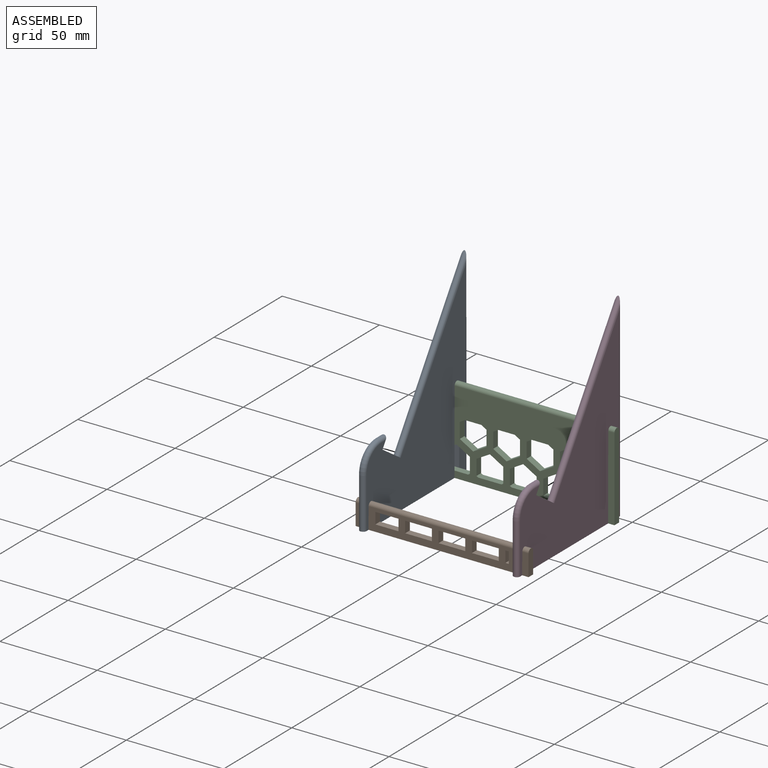
[diagram: assembled view]
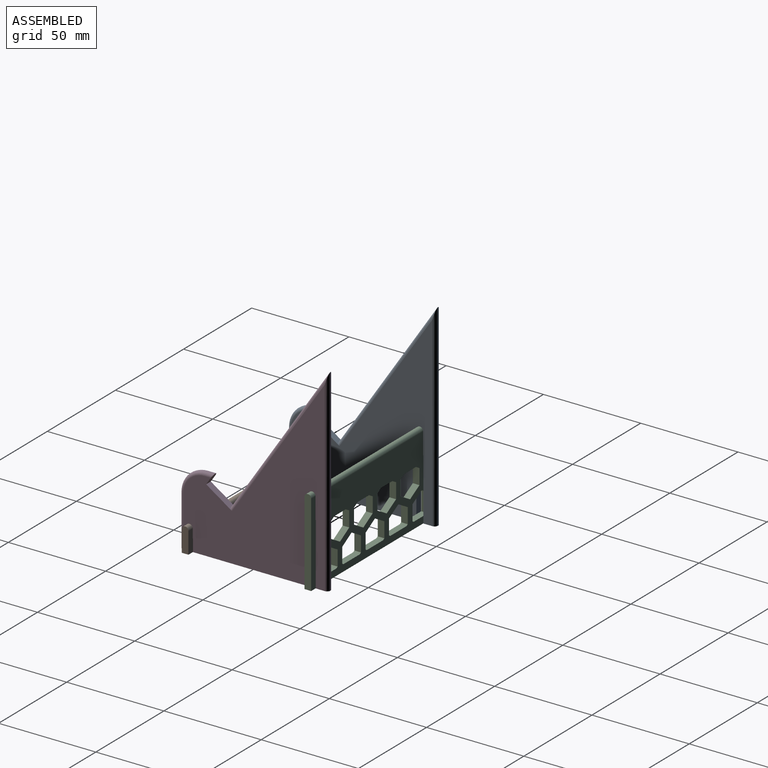
[diagram: assembled view, second angle]
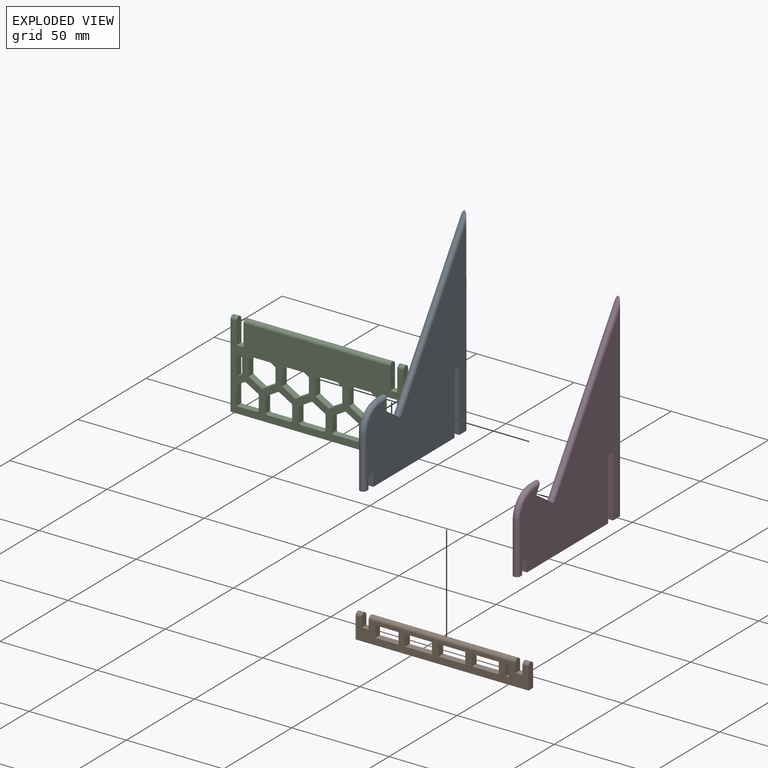
[diagram: exploded view]
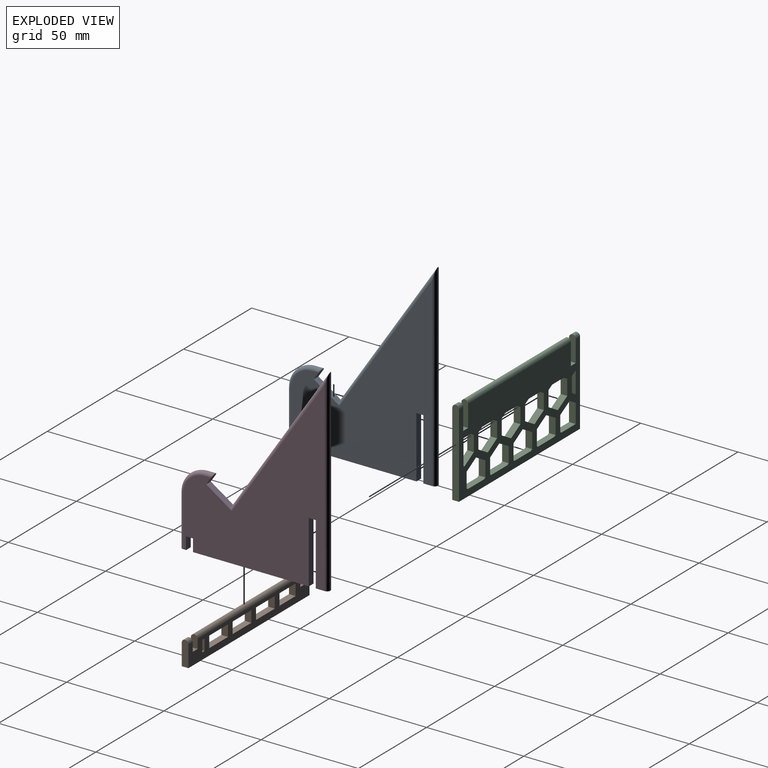
[diagram: exploded view, second angle]
ASSEMBLY  parts=4 mates=3
PART A: 19 faces, bbox 3.4x78.7x101.6 mm
  f0: plane 3.43x3.18mm, normal (0,0,-1), area 9.6mm2, adj f1,f12,f13,f16
  f1: plane 6.35x3.43mm, normal (0,1,0), area 21.8mm2, adj f0,f2,f12,f13
  f2: plane 3.56x3.43mm, normal (0,0,-1), area 12.2mm2, adj f1,f3,f12,f13
  f3: plane 6.35x3.43mm, normal (0,-1,0), area 21.8mm2, adj f2,f4,f12,f13
  f4: plane 59.56x3.43mm, normal (0,0,-1), area 204.2mm2, adj f3,f5,f12,f13
  f5: plane 31.75x3.43mm, normal (0,1,0), area 108.9mm2, adj f4,f6,f12,f13
  f6: plane 3.53x3.43mm, normal (0,0,-1), area 12.1mm2, adj f5,f7,f12,f13
  f7: cylinder r=3.32mm len=3.43mm, axis (-1,0,0), area 0.8mm2, adj f6,f8,f12,f13
  f8: plane 31.53x3.43mm, normal (0,-1,0), area 108.1mm2, adj f7,f9,f12,f13
  f9: plane 6.35x3.43mm, normal (0,0,-1), area 20.5mm2, adj f8,f12,f13,f17
  f10: plane 13.31x8.88mm, normal (0,0.55,0.83), area 50.3mm2, adj f11,f12,f13,f18
  f11: plane 5.28x3.52mm, normal (0,0.83,-0.55), area 20.3mm2, adj f10,f12,f13,f14
  f12: plane 95.94x72.77mm, normal (1,0,0), area 3531.5mm2, adj f0,f1,f2,f3,f4,f5,f6,f7
  f13: plane 95.94x72.77mm, normal (-1,0,0), area 3531.5mm2, adj f0,f1,f2,f3,f4,f5,f6,f7
  f14: cylinder r=1.71mm len=4.34mm, axis (0,-1,0), area 21.1mm2, adj f11,f12,f13,f15
  f15: torus R=10.99mm, axis (1,0,0), area 102.2mm2, adj f12,f13,f14,f16
  f16: cylinder r=1.71mm len=25.91mm, axis (0,0,-1), area 139.6mm2, adj f0,f12,f13,f15
  f17: cylinder r=1.71mm len=101.62mm, axis (0,0,-1), area 536.2mm2, adj f9,f12,f13,f18
  f18: cylinder r=1.71mm len=77.17mm, axis (0,0.55,0.83), area 482.2mm2, adj f10,f12,f13,f17
PART B: 34 faces, bbox 88.9x3.4x12.7 mm
  f0: plane 88.9x10.99mm, normal (0,-1,0), area 623.1mm2, adj f2,f3,f4,f5,f6,f7,f8,f9
  f1: plane 88.9x10.99mm, normal (0,1,0), area 623.1mm2, adj f2,f3,f4,f5,f6,f7,f8,f9
  f2: plane 6.35x3.43mm, normal (1,0,0), area 20.5mm2, adj f0,f1,f10,f13
  f3: plane 6.35x3.43mm, normal (-1,0,0), area 20.5mm2, adj f0,f1,f4,f13
  f4: plane 3.56x3.43mm, normal (0,0,1), area 12.2mm2, adj f0,f1,f3,f5
  f5: plane 6.35x3.43mm, normal (1,0,0), area 20.5mm2, adj f0,f1,f4,f12
  f6: plane 12.7x3.43mm, normal (-1,0,0), area 42.3mm2, adj f0,f1,f7,f12
  f7: plane 88.9x3.43mm, normal (0,0,-1), area 304.8mm2, adj f0,f1,f6,f8
  f8: plane 12.7x3.43mm, normal (1,0,0), area 42.3mm2, adj f0,f1,f7,f11
  f9: plane 6.35x3.43mm, normal (-1,0,0), area 20.5mm2, adj f0,f1,f10,f11
  f10: plane 3.56x3.43mm, normal (0,0,1), area 12.2mm2, adj f0,f1,f2,f9
  f11: cylinder r=1.71mm len=3.43mm, axis (1,0,0), area 17.1mm2, adj f0,f1,f8,f9
  f12: cylinder r=1.71mm len=3.43mm, axis (1,0,0), area 17.1mm2, adj f0,f1,f5,f6
  f13: cylinder r=1.71mm len=75.44mm, axis (1,0,0), area 406.3mm2, adj f0,f1,f2,f3
  f14: plane 3.43x1.74mm, normal (0,0,-1), area 6mm2, adj f0,f1,f15,f17
  f15: plane 5.84x3.43mm, normal (1,0,0), area 20mm2, adj f0,f1,f14,f16
  f16: plane 3.43x1.74mm, normal (0,0,1), area 6mm2, adj f0,f1,f15,f17
  f17: plane 5.84x3.43mm, normal (-1,0,0), area 20mm2, adj f0,f1,f14,f16
  f18: plane 13.74x3.43mm, normal (0,0,1), area 47.1mm2, adj f0,f1,f19,f21
  f19: plane 5.84x3.43mm, normal (-1,0,0), area 20mm2, adj f0,f1,f18,f20
  f20: plane 13.74x3.43mm, normal (0,0,-1), area 47.1mm2, adj f0,f1,f19,f21
  f21: plane 5.84x3.43mm, normal (1,0,0), area 20mm2, adj f0,f1,f18,f20
  f22: plane 5.84x3.43mm, normal (-1,0,0), area 20mm2, adj f0,f1,f23,f25
  f23: plane 13.74x3.43mm, normal (0,0,-1), area 47.1mm2, adj f0,f1,f22,f24
  f24: plane 5.84x3.43mm, normal (1,0,0), area 20mm2, adj f0,f1,f23,f25
  f25: plane 13.74x3.43mm, normal (0,0,1), area 47.1mm2, adj f0,f1,f22,f24
  f26: plane 5.84x3.43mm, normal (-1,0,0), area 20mm2, adj f0,f1,f27,f29
  f27: plane 13.74x3.43mm, normal (0,0,-1), area 47.1mm2, adj f0,f1,f26,f28
  f28: plane 5.84x3.43mm, normal (1,0,0), area 20mm2, adj f0,f1,f27,f29
  f29: plane 13.74x3.43mm, normal (0,0,1), area 47.1mm2, adj f0,f1,f26,f28
  f30: plane 5.84x3.43mm, normal (-1,0,0), area 20mm2, adj f0,f1,f31,f33
  f31: plane 11.9x3.43mm, normal (0,0,-1), area 40.8mm2, adj f0,f1,f30,f32
  f32: plane 5.84x3.43mm, normal (1,0,0), area 20mm2, adj f0,f1,f31,f33
  f33: plane 11.9x3.43mm, normal (0,0,1), area 40.8mm2, adj f0,f1,f30,f32
PART C: 89 faces, bbox 88.9x3.4x44.6 mm
  f0: plane 12.85x3.43mm, normal (1,0,0), area 42.8mm2, adj f6,f7,f70,f88
  f1: plane 44.45x3.43mm, normal (-1,0,0), area 151.2mm2, adj f6,f7,f71,f88
  f2: plane 44.45x3.43mm, normal (1,0,0), area 151.2mm2, adj f6,f7,f73,f87
  f3: plane 12.85x3.43mm, normal (-1,0,0), area 42.8mm2, adj f6,f7,f74,f87
  f4: plane 12.85x3.43mm, normal (1,0,0), area 42.8mm2, adj f6,f7,f74,f86
  f5: plane 12.85x3.43mm, normal (-1,0,0), area 42.8mm2, adj f6,f7,f70,f86
  f6: plane 88.9x42.88mm, normal (0,-1,0), area 2311.3mm2, adj f0,f1,f2,f3,f4,f5,f8,f9
  f7: plane 88.9x42.88mm, normal (0,1,0), area 2311.3mm2, adj f0,f1,f2,f3,f4,f5,f8,f9
  f8: plane 6.87x3.97mm, normal (0.5,0,0.87), area 27.2mm2, adj f6,f7,f9,f85
  f9: plane 7.94x3.43mm, normal (1,0,0), area 27.2mm2, adj f6,f7,f8,f10
  f10: plane 3.43x2.67mm, normal (0.5,0,-0.87), area 10.6mm2, adj f6,f7,f9,f11
  f11: plane 8.42x3.43mm, normal (0,0,-1), area 28.9mm2, adj f6,f7,f10,f12
  f12: plane 3.43x2.67mm, normal (-0.5,0,-0.87), area 10.6mm2, adj f6,f7,f11,f13
  f13: plane 7.94x3.43mm, normal (-1,0,0), area 27.2mm2, adj f6,f7,f12,f85
  f14: plane 7.94x3.43mm, normal (1,0,0), area 27.2mm2, adj f6,f7,f15,f75
  f15: plane 3.43x2.67mm, normal (0.5,0,-0.87), area 10.6mm2, adj f6,f7,f14,f16
  f16: plane 8.42x3.43mm, normal (0,0,-1), area 28.9mm2, adj f6,f7,f15,f17
  f17: plane 3.43x2.67mm, normal (-0.5,0,-0.87), area 10.6mm2, adj f6,f7,f16,f18
  f18: plane 7.94x3.43mm, normal (-1,0,0), area 27.2mm2, adj f6,f7,f17,f19
  f19: plane 6.87x3.97mm, normal (-0.5,0,0.87), area 27.2mm2, adj f6,f7,f18,f75
  f20: plane 6.87x3.97mm, normal (0.5,0,0.87), area 27.2mm2, adj f6,f7,f21,f76
  f21: plane 7.94x3.43mm, normal (1,0,0), area 27.2mm2, adj f6,f7,f20,f22
  f22: plane 3.43x2.67mm, normal (0.5,0,-0.87), area 10.6mm2, adj f6,f7,f21,f23
  f23: plane 8.42x3.43mm, normal (0,0,-1), area 28.9mm2, adj f6,f7,f22,f24
  f24: plane 3.43x2.67mm, normal (-0.5,0,-0.87), area 10.6mm2, adj f6,f7,f23,f25
  f25: plane 7.94x3.43mm, normal (-1,0,0), area 27.2mm2, adj f6,f7,f24,f76
  f26: plane 6.87x3.97mm, normal (0.5,0,0.87), area 27.2mm2, adj f6,f7,f27,f77
  f27: plane 7.94x3.43mm, normal (1,0,0), area 27.2mm2, adj f6,f7,f26,f28
  f28: plane 3.43x2.67mm, normal (0.5,0,-0.87), area 10.6mm2, adj f6,f7,f27,f29
  f29: plane 8.42x3.43mm, normal (0,0,-1), area 28.9mm2, adj f6,f7,f28,f30
  f30: plane 3.43x2.67mm, normal (-0.5,0,-0.87), area 10.6mm2, adj f6,f7,f29,f31
  f31: plane 7.94x3.43mm, normal (-1,0,0), area 27.2mm2, adj f6,f7,f30,f77
  f32: plane 7.94x3.43mm, normal (-1,0,0), area 27.2mm2, adj f6,f7,f33,f78
  f33: plane 3.43x2.81mm, normal (-0.5,0,0.87), area 11.1mm2, adj f6,f7,f32,f34
  f34: plane 11.09x3.43mm, normal (1,0,0), area 38mm2, adj f6,f7,f33,f35
  f35: plane 3.43x0.17mm, normal (0,0,-1), area 0.6mm2, adj f6,f7,f34,f78
  f36: plane 7.02x4.05mm, normal (0.5,0,0.87), area 27.8mm2, adj f6,f7,f37,f79
  f37: plane 8x3.43mm, normal (1,0,0), area 27.4mm2, adj f6,f7,f36,f38
  f38: plane 3.43x2.41mm, normal (0.5,0,-0.87), area 9.5mm2, adj f6,f7,f37,f39
  f39: plane 5.24x3.43mm, normal (0,0,-1), area 18mm2, adj f6,f7,f38,f40
  f40: plane 12.85x3.43mm, normal (-1,0,0), area 44.1mm2, adj f6,f7,f39,f79
  f41: plane 7.94x3.43mm, normal (-1,0,0), area 27.2mm2, adj f6,f7,f42,f80
  f42: plane 3.43x0.91mm, normal (-0.5,0,0.87), area 3.6mm2, adj f6,f7,f41,f43
  f43: plane 10.46x3.43mm, normal (0,0,1), area 35.9mm2, adj f6,f7,f42,f44
  f44: plane 9.84x3.43mm, normal (1,0,0), area 33.7mm2, adj f6,f7,f43,f45
  f45: plane 4.5x3.43mm, normal (0.5,0,-0.87), area 17.8mm2, adj f6,f7,f44,f80
  f46: plane 7.94x3.43mm, normal (-1,0,0), area 27.2mm2, adj f6,f7,f47,f81
  f47: plane 3.43x0.91mm, normal (-0.5,0,0.87), area 3.6mm2, adj f6,f7,f46,f48
  f48: plane 11.92x3.43mm, normal (0,0,1), area 40.9mm2, adj f6,f7,f47,f49
  f49: plane 3.43x0.91mm, normal (0.5,0,0.87), area 3.6mm2, adj f6,f7,f48,f50
  f50: plane 7.94x3.43mm, normal (1,0,0), area 27.2mm2, adj f6,f7,f49,f51
  f51: plane 6.87x3.97mm, normal (0.5,0,-0.87), area 27.2mm2, adj f6,f7,f50,f81
  f52: plane 7.94x3.43mm, normal (-1,0,0), area 27.2mm2, adj f6,f7,f53,f82
  f53: plane 3.43x0.91mm, normal (-0.5,0,0.87), area 3.6mm2, adj f6,f7,f52,f54
  f54: plane 11.92x3.43mm, normal (0,0,1), area 40.9mm2, adj f6,f7,f53,f55
  f55: plane 3.43x0.91mm, normal (0.5,0,0.87), area 3.6mm2, adj f6,f7,f54,f56
  f56: plane 7.94x3.43mm, normal (1,0,0), area 27.2mm2, adj f6,f7,f55,f57
  f57: plane 6.87x3.97mm, normal (0.5,0,-0.87), area 27.2mm2, adj f6,f7,f56,f82
  f58: plane 7.94x3.43mm, normal (-1,0,0), area 27.2mm2, adj f6,f7,f59,f83
  f59: plane 3.43x0.91mm, normal (-0.5,0,0.87), area 3.6mm2, adj f6,f7,f58,f60
  f60: plane 11.92x3.43mm, normal (0,0,1), area 40.9mm2, adj f6,f7,f59,f61
  f61: plane 3.43x0.91mm, normal (0.5,0,0.87), area 3.6mm2, adj f6,f7,f60,f62
  f62: plane 7.94x3.43mm, normal (1,0,0), area 27.2mm2, adj f6,f7,f61,f63
  f63: plane 6.87x3.97mm, normal (0.5,0,-0.87), area 27.2mm2, adj f6,f7,f62,f83
  f64: plane 6.87x3.97mm, normal (-0.5,0,-0.87), area 27.2mm2, adj f6,f7,f65,f84
  f65: plane 7.94x3.43mm, normal (-1,0,0), area 27.2mm2, adj f6,f7,f64,f66
  f66: plane 3.43x0.91mm, normal (-0.5,0,0.87), area 3.6mm2, adj f6,f7,f65,f67
  f67: plane 11.92x3.43mm, normal (0,0,1), area 40.9mm2, adj f6,f7,f66,f68
  f68: plane 3.43x0.91mm, normal (0.5,0,0.87), area 3.6mm2, adj f6,f7,f67,f69
  f69: plane 7.94x3.43mm, normal (1,0,0), area 27.2mm2, adj f6,f7,f68,f84
  f70: plane 3.55x3.43mm, normal (0,0,1), area 12.2mm2, adj f0,f5,f6,f7
  f71: plane 3.43x0.15mm, normal (-1,0,0.01), area 0.5mm2, adj f1,f6,f7,f72
  f72: plane 88.9x3.43mm, normal (0,0,-1), area 304.8mm2, adj f6,f7,f71,f73
  f73: plane 3.43x0.15mm, normal (1,0,-0.01), area 0.5mm2, adj f2,f6,f7,f72
  f74: plane 3.56x3.43mm, normal (0,0,1), area 12.2mm2, adj f3,f4,f6,f7
  f75: plane 6.87x3.97mm, normal (0.5,0,0.87), area 27.2mm2, adj f6,f7,f14,f19
  f76: plane 6.87x3.97mm, normal (-0.5,0,0.87), area 27.2mm2, adj f6,f7,f20,f25
  f77: plane 6.87x3.97mm, normal (-0.5,0,0.87), area 27.2mm2, adj f6,f7,f26,f31
  f78: plane 3.43x2.64mm, normal (-0.5,0,-0.87), area 10.5mm2, adj f6,f7,f32,f35
  f79: plane 3.43x0.63mm, normal (-0.69,0,0.73), area 3mm2, adj f6,f7,f36,f40
  f80: plane 6.87x3.97mm, normal (-0.5,0,-0.87), area 27.2mm2, adj f6,f7,f41,f45
  f81: plane 6.87x3.97mm, normal (-0.5,0,-0.87), area 27.2mm2, adj f6,f7,f46,f51
  f82: plane 6.87x3.97mm, normal (-0.5,0,-0.87), area 27.2mm2, adj f6,f7,f52,f57
  f83: plane 6.87x3.97mm, normal (-0.5,0,-0.87), area 27.2mm2, adj f6,f7,f58,f63
  f84: plane 6.87x3.97mm, normal (0.5,0,-0.87), area 27.2mm2, adj f6,f7,f64,f69
  f85: plane 6.87x3.97mm, normal (-0.5,0,0.87), area 27.2mm2, adj f6,f7,f8,f13
  f86: cylinder r=1.71mm len=75.44mm, axis (-1,0,0), area 406.3mm2, adj f4,f5,f6,f7
  f87: cylinder r=1.71mm len=3.43mm, axis (-1,0,0), area 17.1mm2, adj f2,f3,f6,f7
  f88: cylinder r=1.71mm len=3.43mm, axis (-1,0,0), area 17.1mm2, adj f0,f1,f6,f7
PART D: same geometry as A
PLACE A t=(-70.67,11.19,28.42)mm
PLACE B t=(0,-64.82,-16.03)mm
PLACE C at identity
PLACE D t=(8.33,11.19,28.42)mm
MATE fastened D.f6 <-> C.f74  axis (0,0,-1) through (8.33,-1.71,65.25)mm
MATE fastened A.f6 <-> C.f70  axis (0,0,-1) through (-70.67,-1.71,65.25)mm
MATE fastened B.f10 <-> D.f2  axis (0,0,1) through (8.33,-64.82,39.85)mm
